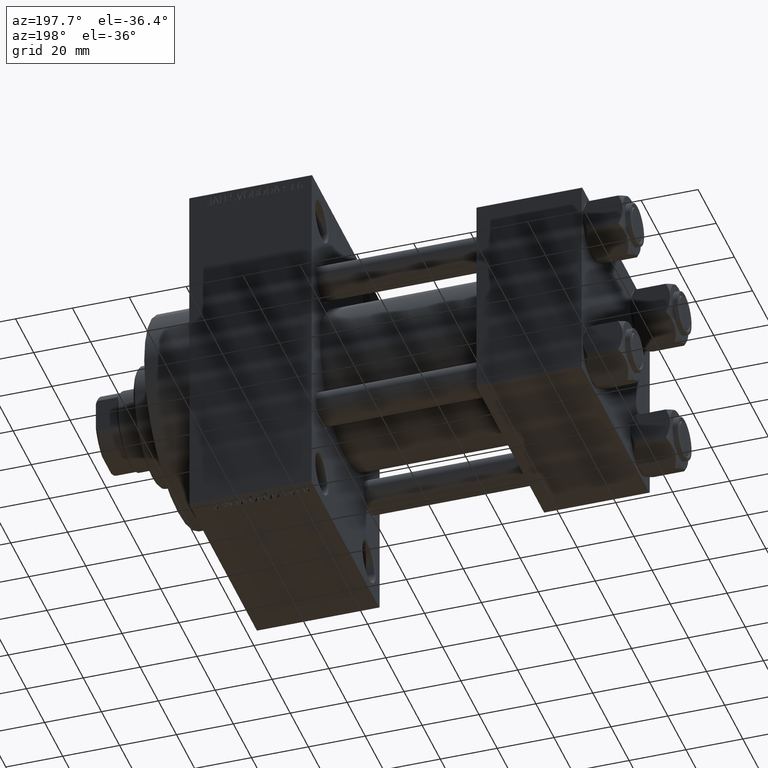
[diagram: clean part render]
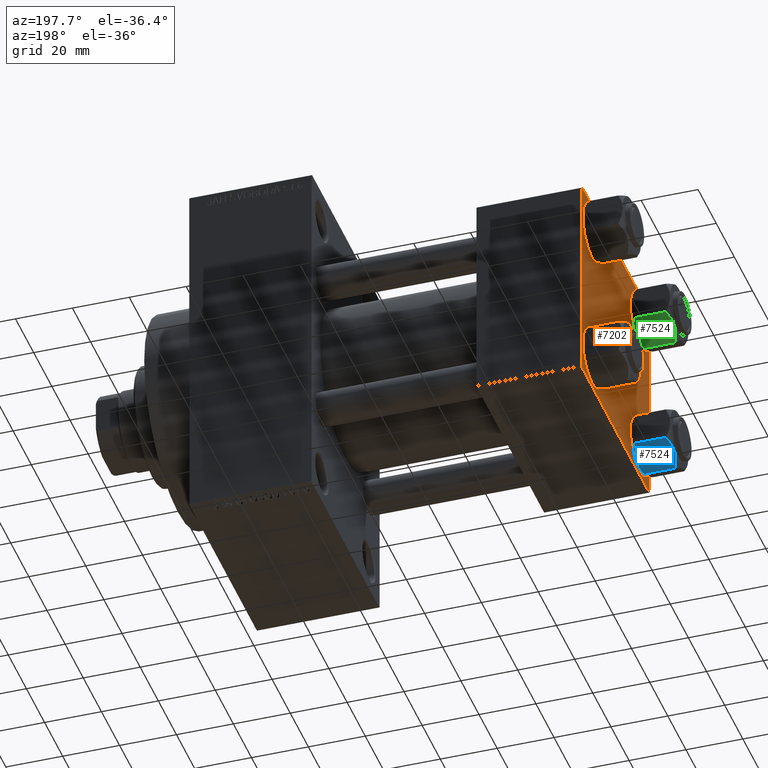
[diagram: same view with three faces highlighted in distinct colors, each labeled with its STEP entity id]
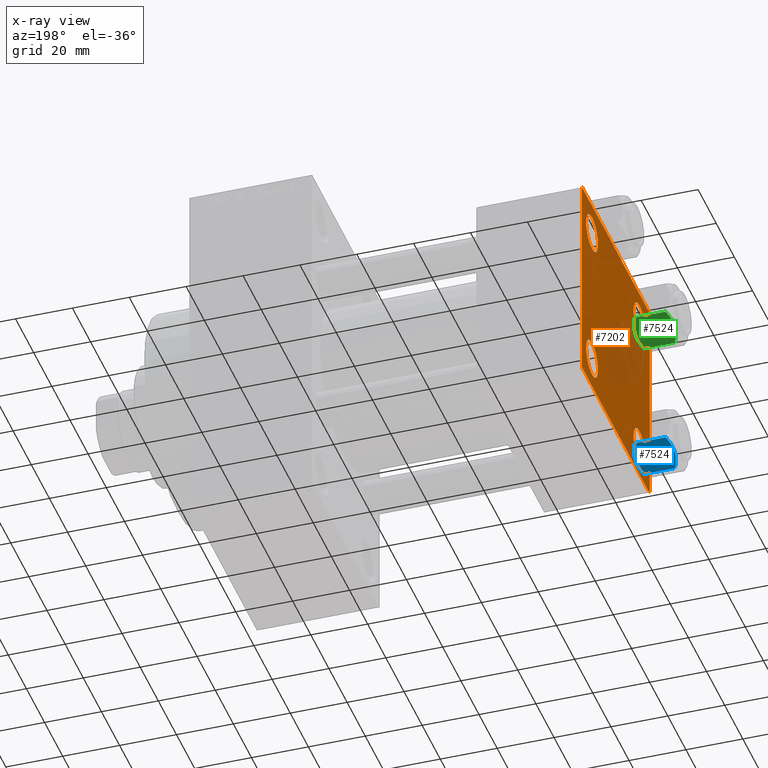
[diagram: x-ray of the same camera — body ghosted, the three highlighted faces saturated]
A machine part, auxiliary view with three faces highlighted in distinct colors.
The next image is the same camera in x-ray (body ghosted, the three faces saturated) — at least one of them is partly hidden behind the body in this view.
Their STEP definitions:

[orange] entity #7202 — the highlighted planar face has unit normal (-1, 0, 0).
#605 = CARTESIAN_POINT ( 'NONE',  ( 0.000000000000000000, 37.49999999999999289, 37.00000000000000000 ) ) ;
#720 = DIRECTION ( 'NONE',  ( 1.000000000000000000, -0.000000000000000000, 0.000000000000000000 ) ) ;
#965 = VECTOR ( 'NONE', #40925, 1000.000000000000000 ) ;
#1053 = DIRECTION ( 'NONE',  ( 1.000000000000000000, -0.000000000000000000, 0.000000000000000000 ) ) ;
#1736 = EDGE_LOOP ( 'NONE', ( #29066, #24371 ) ) ;
#2817 = EDGE_CURVE ( 'NONE', #22988, #34729, #35457, .T. ) ;
#2868 = VERTEX_POINT ( 'NONE', #29893 ) ;
#3080 = EDGE_CURVE ( 'NONE', #45948, #46241, #46792, .T. ) ;
#3264 = VERTEX_POINT ( 'NONE', #12159 ) ;
#3584 = DIRECTION ( 'NONE',  ( 0.000000000000000000, 0.000000000000000000, 1.000000000000000000 ) ) ;
#3593 = DIRECTION ( 'NONE',  ( -0.000000000000000000, 0.7071067811865474617, 0.7071067811865474617 ) ) ;
#3963 = EDGE_CURVE ( 'NONE', #18102, #21111, #7636, .T. ) ;
#5175 = VERTEX_POINT ( 'NONE', #29492 ) ;
#5700 = CIRCLE ( 'NONE', #33925, 6.500000000000015987 ) ;
#5885 = DIRECTION ( 'NONE',  ( -0.000000000000000000, 0.000000000000000000, 1.000000000000000000 ) ) ;
#5938 = DIRECTION ( 'NONE',  ( 0.000000000000000000, 0.000000000000000000, 1.000000000000000000 ) ) ;
#6451 = ORIENTED_EDGE ( 'NONE', *, *, #38595, .T. ) ;
#6553 = VERTEX_POINT ( 'NONE', #28011 ) ;
#6783 = VECTOR ( 'NONE', #11173, 1000.000000000000000 ) ;
#6935 = CARTESIAN_POINT ( 'NONE',  ( -0.000000000000000000, -37.25000000000000000, 37.25000000000000000 ) ) ;
#6989 = EDGE_CURVE ( 'NONE', #2868, #31759, #43570, .T. ) ;
#7202 = ADVANCED_FACE ( 'NONE', ( #31423, #38819, #46208, #24037, #21171 ), #16873, .T. ) ;
#7291 = EDGE_LOOP ( 'NONE', ( #22604, #31156, #36927, #37890, #29996, #34312, #44545, #31688 ) ) ;
#7636 = CIRCLE ( 'NONE', #22129, 6.500000000000023093 ) ;
#7920 = CARTESIAN_POINT ( 'NONE',  ( 0.000000000000000000, 36.99999999999997868, -37.50000000000000000 ) ) ;
#8272 = LINE ( 'NONE', #43852, #6783 ) ;
#8438 = DIRECTION ( 'NONE',  ( 0.000000000000000000, 0.7071067811865474617, -0.7071067811865474617 ) ) ;
#9202 = VERTEX_POINT ( 'NONE', #15402 ) ;
#9738 = EDGE_CURVE ( 'NONE', #21111, #18102, #24556, .T. ) ;
#10139 = VERTEX_POINT ( 'NONE', #605 ) ;
#10192 = EDGE_CURVE ( 'NONE', #10139, #33866, #34243, .T. ) ;
#10282 = DIRECTION ( 'NONE',  ( 1.000000000000000000, -0.000000000000000000, 0.000000000000000000 ) ) ;
#10821 = DIRECTION ( 'NONE',  ( 0.000000000000000000, 0.000000000000000000, 1.000000000000000000 ) ) ;
#10824 = DIRECTION ( 'NONE',  ( 1.000000000000000000, -0.000000000000000000, 0.000000000000000000 ) ) ;
#11173 = DIRECTION ( 'NONE',  ( 0.000000000000000000, -1.000000000000000000, -9.251858538542971581E-17 ) ) ;
#11236 = CARTESIAN_POINT ( 'NONE',  ( 0.000000000000000000, 26.14999999999999858, -26.15000000000000213 ) ) ;
#11302 = CIRCLE ( 'NONE', #44062, 6.500000000000023093 ) ;
#11780 = EDGE_LOOP ( 'NONE', ( #34070, #6451 ) ) ;
#11798 = LINE ( 'NONE', #15377, #35357 ) ;
#12159 = CARTESIAN_POINT ( 'NONE',  ( 0.000000000000000000, -26.14999999999999147, -32.65000000000002700 ) ) ;
#12754 = AXIS2_PLACEMENT_3D ( 'NONE', #11236, #10282, #43684 ) ;
#12897 = CARTESIAN_POINT ( 'NONE',  ( 0.000000000000000000, 26.14999999999999858, 32.65000000000002700 ) ) ;
#13289 = DIRECTION ( 'NONE',  ( -1.000000000000000000, 0.000000000000000000, -0.000000000000000000 ) ) ;
#14084 = EDGE_CURVE ( 'NONE', #46241, #34729, #34233, .T. ) ;
#14172 = DIRECTION ( 'NONE',  ( 0.000000000000000000, 0.000000000000000000, 1.000000000000000000 ) ) ;
#14394 = EDGE_CURVE ( 'NONE', #3264, #5175, #33022, .T. ) ;
#14688 = AXIS2_PLACEMENT_3D ( 'NONE', #33210, #720, #39652 ) ;
#15044 = DIRECTION ( 'NONE',  ( 0.000000000000000000, -1.000000000000000000, -9.251858538542972814E-17 ) ) ;
#15377 = CARTESIAN_POINT ( 'NONE',  ( 0.000000000000000000, 37.24999999999999289, 37.24999999999999289 ) ) ;
#15402 = CARTESIAN_POINT ( 'NONE',  ( 0.000000000000000000, -37.00000000000000711, 37.49999999999999289 ) ) ;
#16102 = VECTOR ( 'NONE', #45452, 1000.000000000000000 ) ;
#16873 = PLANE ( 'NONE',  #23743 ) ;
#17922 = CARTESIAN_POINT ( 'NONE',  ( 0.000000000000000000, -37.00000000000002132, -37.50000000000000711 ) ) ;
#18026 = CIRCLE ( 'NONE', #31730, 6.500000000000023093 ) ;
#18102 = VERTEX_POINT ( 'NONE', #19902 ) ;
#18162 = CARTESIAN_POINT ( 'NONE',  ( 0.000000000000000000, 36.99999999999999289, 37.50000000000000000 ) ) ;
#18370 = CARTESIAN_POINT ( 'NONE',  ( 0.000000000000000000, -37.50000000000000000, -37.00000000000003553 ) ) ;
#19800 = VECTOR ( 'NONE', #21380, 1000.000000000000000 ) ;
#19902 = CARTESIAN_POINT ( 'NONE',  ( 0.000000000000000000, -26.14999999999999147, 32.65000000000003411 ) ) ;
#19920 = CARTESIAN_POINT ( 'NONE',  ( 0.000000000000000000, -37.24999999999975842, -37.25000000000027001 ) ) ;
#19937 = EDGE_CURVE ( 'NONE', #38576, #10139, #11798, .T. ) ;
#20193 = EDGE_LOOP ( 'NONE', ( #24945, #44354 ) ) ;
#20338 = CARTESIAN_POINT ( 'NONE',  ( 0.000000000000000000, -26.14999999999999147, -26.15000000000000924 ) ) ;
#20744 = CARTESIAN_POINT ( 'NONE',  ( 0.000000000000000000, 26.14999999999999858, -26.15000000000000213 ) ) ;
#21111 = VERTEX_POINT ( 'NONE', #29487 ) ;
#21171 = FACE_OUTER_BOUND ( 'NONE', #7291, .T. ) ;
#21380 = DIRECTION ( 'NONE',  ( 0.000000000000000000, 9.251858538542971581E-17, -1.000000000000000000 ) ) ;
#22118 = VERTEX_POINT ( 'NONE', #12897 ) ;
#22129 = AXIS2_PLACEMENT_3D ( 'NONE', #35405, #24666, #10821 ) ;
#22604 = ORIENTED_EDGE ( 'NONE', *, *, #10192, .T. ) ;
#22988 = VERTEX_POINT ( 'NONE', #31991 ) ;
#23743 = AXIS2_PLACEMENT_3D ( 'NONE', #28576, #13289, #5885 ) ;
#24037 = FACE_BOUND ( 'NONE', #11780, .T. ) ;
#24371 = ORIENTED_EDGE ( 'NONE', *, *, #14394, .T. ) ;
#24556 = CIRCLE ( 'NONE', #14688, 6.500000000000023093 ) ;
#24666 = DIRECTION ( 'NONE',  ( 1.000000000000000000, -0.000000000000000000, 0.000000000000000000 ) ) ;
#24795 = CARTESIAN_POINT ( 'NONE',  ( 0.000000000000000000, 37.49999999999999289, -36.99999999999998579 ) ) ;
#24909 = EDGE_CURVE ( 'NONE', #33866, #45948, #33622, .T. ) ;
#24945 = ORIENTED_EDGE ( 'NONE', *, *, #32568, .T. ) ;
#25034 = VECTOR ( 'NONE', #3593, 1000.000000000000114 ) ;
#25568 = LINE ( 'NONE', #6935, #25034 ) ;
#25768 = CARTESIAN_POINT ( 'NONE',  ( 0.000000000000000000, 37.24999999999998579, -37.24999999999998579 ) ) ;
#26378 = CARTESIAN_POINT ( 'NONE',  ( 0.000000000000000000, 26.14999999999999858, 26.15000000000000213 ) ) ;
#26896 = EDGE_CURVE ( 'NONE', #5175, #3264, #5700, .T. ) ;
#27075 = DIRECTION ( 'NONE',  ( 0.000000000000000000, 0.000000000000000000, 1.000000000000000000 ) ) ;
#28011 = CARTESIAN_POINT ( 'NONE',  ( 0.000000000000000000, 26.14999999999999858, 19.64999999999998437 ) ) ;
#28576 = CARTESIAN_POINT ( 'NONE',  ( 0.000000000000000000, 0.000000000000000000, 0.000000000000000000 ) ) ;
#29066 = ORIENTED_EDGE ( 'NONE', *, *, #26896, .T. ) ;
#29115 = AXIS2_PLACEMENT_3D ( 'NONE', #20744, #38640, #5938 ) ;
#29222 = CARTESIAN_POINT ( 'NONE',  ( 0.000000000000000000, 26.14999999999999858, -19.64999999999998792 ) ) ;
#29487 = CARTESIAN_POINT ( 'NONE',  ( 0.000000000000000000, -26.14999999999999147, 19.64999999999999147 ) ) ;
#29492 = CARTESIAN_POINT ( 'NONE',  ( 0.000000000000000000, -26.14999999999999147, -19.64999999999999503 ) ) ;
#29893 = CARTESIAN_POINT ( 'NONE',  ( 0.000000000000000000, 26.14999999999999858, -32.65000000000001990 ) ) ;
#29996 = ORIENTED_EDGE ( 'NONE', *, *, #2817, .F. ) ;
#30501 = EDGE_CURVE ( 'NONE', #22118, #6553, #18026, .T. ) ;
#31126 = CARTESIAN_POINT ( 'NONE',  ( 0.000000000000000000, 37.49999999999999289, 37.50000000000000000 ) ) ;
#31156 = ORIENTED_EDGE ( 'NONE', *, *, #24909, .T. ) ;
#31229 = VECTOR ( 'NONE', #15044, 1000.000000000000000 ) ;
#31423 = FACE_BOUND ( 'NONE', #46415, .T. ) ;
#31688 = ORIENTED_EDGE ( 'NONE', *, *, #19937, .T. ) ;
#31730 = AXIS2_PLACEMENT_3D ( 'NONE', #26378, #1053, #27075 ) ;
#31759 = VERTEX_POINT ( 'NONE', #29222 ) ;
#31991 = CARTESIAN_POINT ( 'NONE',  ( 0.000000000000000000, -37.50000000000000711, 36.99999999999999289 ) ) ;
#32270 = AXIS2_PLACEMENT_3D ( 'NONE', #20338, #34886, #42975 ) ;
#32568 = EDGE_CURVE ( 'NONE', #31759, #2868, #40931, .T. ) ;
#33022 = CIRCLE ( 'NONE', #32270, 6.500000000000015987 ) ;
#33088 = VECTOR ( 'NONE', #33395, 1000.000000000000114 ) ;
#33210 = CARTESIAN_POINT ( 'NONE',  ( 0.000000000000000000, -26.14999999999999147, 26.15000000000000924 ) ) ;
#33395 = DIRECTION ( 'NONE',  ( -0.000000000000000000, -0.7071067811865474617, -0.7071067811865474617 ) ) ;
#33622 = LINE ( 'NONE', #25768, #33088 ) ;
#33866 = VERTEX_POINT ( 'NONE', #24795 ) ;
#33925 = AXIS2_PLACEMENT_3D ( 'NONE', #46859, #10824, #14172 ) ;
#34070 = ORIENTED_EDGE ( 'NONE', *, *, #30501, .T. ) ;
#34233 = LINE ( 'NONE', #19920, #965 ) ;
#34243 = LINE ( 'NONE', #31126, #16102 ) ;
#34312 = ORIENTED_EDGE ( 'NONE', *, *, #39492, .T. ) ;
#34729 = VERTEX_POINT ( 'NONE', #18370 ) ;
#34886 = DIRECTION ( 'NONE',  ( 1.000000000000000000, -0.000000000000000000, 0.000000000000000000 ) ) ;
#35357 = VECTOR ( 'NONE', #8438, 1000.000000000000114 ) ;
#35405 = CARTESIAN_POINT ( 'NONE',  ( 0.000000000000000000, -26.14999999999999147, 26.15000000000000924 ) ) ;
#35457 = LINE ( 'NONE', #35696, #19800 ) ;
#35696 = CARTESIAN_POINT ( 'NONE',  ( 0.000000000000000000, -37.50000000000000711, 37.49999999999999289 ) ) ;
#36297 = CARTESIAN_POINT ( 'NONE',  ( 0.000000000000000000, 26.14999999999999858, 26.15000000000000213 ) ) ;
#36927 = ORIENTED_EDGE ( 'NONE', *, *, #3080, .T. ) ;
#37594 = ORIENTED_EDGE ( 'NONE', *, *, #9738, .T. ) ;
#37890 = ORIENTED_EDGE ( 'NONE', *, *, #14084, .T. ) ;
#37910 = ORIENTED_EDGE ( 'NONE', *, *, #3963, .T. ) ;
#38576 = VERTEX_POINT ( 'NONE', #18162 ) ;
#38595 = EDGE_CURVE ( 'NONE', #6553, #22118, #11302, .T. ) ;
#38640 = DIRECTION ( 'NONE',  ( 1.000000000000000000, -0.000000000000000000, 0.000000000000000000 ) ) ;
#38819 = FACE_BOUND ( 'NONE', #1736, .T. ) ;
#39492 = EDGE_CURVE ( 'NONE', #22988, #9202, #25568, .T. ) ;
#39652 = DIRECTION ( 'NONE',  ( 0.000000000000000000, 0.000000000000000000, 1.000000000000000000 ) ) ;
#39837 = EDGE_CURVE ( 'NONE', #38576, #9202, #8272, .T. ) ;
#40120 = CARTESIAN_POINT ( 'NONE',  ( 0.000000000000000000, 37.49999999999999289, -37.50000000000000000 ) ) ;
#40925 = DIRECTION ( 'NONE',  ( 0.000000000000000000, -0.7071067811865524577, 0.7071067811865426878 ) ) ;
#40931 = CIRCLE ( 'NONE', #12754, 6.500000000000015987 ) ;
#42975 = DIRECTION ( 'NONE',  ( 0.000000000000000000, 0.000000000000000000, 1.000000000000000000 ) ) ;
#43189 = DIRECTION ( 'NONE',  ( 1.000000000000000000, -0.000000000000000000, 0.000000000000000000 ) ) ;
#43570 = CIRCLE ( 'NONE', #29115, 6.500000000000015987 ) ;
#43684 = DIRECTION ( 'NONE',  ( 0.000000000000000000, 0.000000000000000000, 1.000000000000000000 ) ) ;
#43852 = CARTESIAN_POINT ( 'NONE',  ( 0.000000000000000000, 37.49999999999999289, 37.50000000000000000 ) ) ;
#44062 = AXIS2_PLACEMENT_3D ( 'NONE', #36297, #43189, #3584 ) ;
#44354 = ORIENTED_EDGE ( 'NONE', *, *, #6989, .T. ) ;
#44545 = ORIENTED_EDGE ( 'NONE', *, *, #39837, .F. ) ;
#45452 = DIRECTION ( 'NONE',  ( 0.000000000000000000, 0.000000000000000000, -1.000000000000000000 ) ) ;
#45948 = VERTEX_POINT ( 'NONE', #7920 ) ;
#46208 = FACE_BOUND ( 'NONE', #20193, .T. ) ;
#46241 = VERTEX_POINT ( 'NONE', #17922 ) ;
#46415 = EDGE_LOOP ( 'NONE', ( #37910, #37594 ) ) ;
#46792 = LINE ( 'NONE', #40120, #31229 ) ;
#46859 = CARTESIAN_POINT ( 'NONE',  ( 0.000000000000000000, -26.14999999999999147, -26.15000000000000924 ) ) ;

[blue] entity #7524 — the highlighted planar face has unit normal (0, -0.5, 0.866).
#97 = AXIS2_PLACEMENT_3D ( 'NONE', #46069, #20553, #34871 ) ;
#2438 = CARTESIAN_POINT ( 'NONE',  ( 8.209704053696569304, -5.906805847843727086, -14.00000000000000178 ) ) ;
#2768 = CARTESIAN_POINT ( 'NONE',  ( 5.810000000000000497, -10.06321519197517667, -1.556784808024811895 ) ) ;
#3490 = CARTESIAN_POINT ( 'NONE',  ( 8.715000000000003411, -5.031607595987592774, 0.000000000000000000 ) ) ;
#4543 = CARTESIAN_POINT ( 'NONE',  ( 8.715000000000003411, -5.031607595987592774, -14.00000000000000000 ) ) ;
#4630 = EDGE_CURVE ( 'NONE', #16081, #36760, #28014, .T. ) ;
#4943 = EDGE_LOOP ( 'NONE', ( #32400, #23801, #25088, #14974, #10931, #25487 ) ) ;
#5148 = CARTESIAN_POINT ( 'NONE',  ( 11.62000000000000099, -1.813166800014576593E-15, -14.00000000000000000 ) ) ;
#5255 = B_SPLINE_CURVE_WITH_KNOTS ( 'NONE', 3,
 ( #2768, #24736, #21163, #10410, #35233, #31888, #43091, #3490 ),
 .UNSPECIFIED., .F., .F.,
 ( 4, 2, 2, 4 ),
 ( 2.544312114902182352E-07, 0.003011550106433539056, 0.004517197944044561847, 0.006022845781655586372 ),
 .UNSPECIFIED. ) ;
#5385 = DIRECTION ( 'NONE',  ( -0.000000000000000000, -0.000000000000000000, 1.000000000000000000 ) ) ;
#5746 = FACE_OUTER_BOUND ( 'NONE', #4943, .T. ) ;
#7524 = ADVANCED_FACE ( 'NONE', ( #5746 ), #31052, .F. ) ;
#7621 = CARTESIAN_POINT ( 'NONE',  ( 11.16498164529022574, -0.7881149087337312453, -1.101766453314952487 ) ) ;
#7671 = VECTOR ( 'NONE', #41853, 1000.000000000000000 ) ;
#8592 = CARTESIAN_POINT ( 'NONE',  ( 8.969430103550381617, -4.590921729663316242, -14.00000000000000178 ) ) ;
#9120 = EDGE_CURVE ( 'NONE', #36760, #12416, #5255, .T. ) ;
#9843 = CARTESIAN_POINT ( 'NONE',  ( 6.265018354709780191, -9.275100283241448196, -12.89823354668505395 ) ) ;
#9868 = CARTESIAN_POINT ( 'NONE',  ( 5.810000000000000497, -10.06321519197517667, -14.00000000000000000 ) ) ;
#10410 = CARTESIAN_POINT ( 'NONE',  ( 7.455303369716807182, -7.213466161761383333, -0.3002673809867365540 ) ) ;
#10931 = ORIENTED_EDGE ( 'NONE', *, *, #4630, .F. ) ;
#12131 = CARTESIAN_POINT ( 'NONE',  ( 9.220295946303432189, -4.156409344131454020, 3.521962994683380021E-15 ) ) ;
#12416 = VERTEX_POINT ( 'NONE', #33320 ) ;
#14974 = ORIENTED_EDGE ( 'NONE', *, *, #9120, .F. ) ;
#15535 = CARTESIAN_POINT ( 'NONE',  ( 10.69859855102500923, -1.595914123792265160, -13.28585617404753627 ) ) ;
#16081 = VERTEX_POINT ( 'NONE', #33684 ) ;
#16341 = EDGE_CURVE ( 'NONE', #12416, #31127, #22327, .T. ) ;
#16781 = CARTESIAN_POINT ( 'NONE',  ( 8.715000000000003411, -5.031607595987592774, -14.00000000000000000 ) ) ;
#17012 = CARTESIAN_POINT ( 'NONE',  ( 7.713000053756305263, -6.767122412062954062, -13.84547602999601956 ) ) ;
#18611 = VECTOR ( 'NONE', #5385, 1000.000000000000000 ) ;
#20553 = DIRECTION ( 'NONE',  ( -0.8660254037844385966, 0.5000000000000002220, 0.000000000000000000 ) ) ;
#20833 = CARTESIAN_POINT ( 'NONE',  ( 5.810000000000000497, -10.06321519197517667, -12.44321519197518811 ) ) ;
#20876 = EDGE_CURVE ( 'NONE', #44746, #31127, #45482, .T. ) ;
#21163 = CARTESIAN_POINT ( 'NONE',  ( 6.731401448974991375, -8.467301068182914392, -0.7141438259524641730 ) ) ;
#22188 = CARTESIAN_POINT ( 'NONE',  ( 8.715000000000003411, -5.031607595987592774, 0.000000000000000000 ) ) ;
#22327 = B_SPLINE_CURVE_WITH_KNOTS ( 'NONE', 3,
 ( #22188, #12131, #26462, #26005, #7621, #41009 ),
 .UNSPECIFIED., .F., .F.,
 ( 4, 2, 4 ),
 ( 0.006022845781655586372, 0.009013049135303633289, 0.01200325248895168020 ),
 .UNSPECIFIED. ) ;
#23801 = ORIENTED_EDGE ( 'NONE', *, *, #20876, .T. ) ;
#24455 = CARTESIAN_POINT ( 'NONE',  ( 5.810000000000000497, -10.06321519197517667, -1.556784808024811895 ) ) ;
#24736 = CARTESIAN_POINT ( 'NONE',  ( 6.265545725125285514, -9.274186850887382150, -1.101239082899530430 ) ) ;
#25088 = ORIENTED_EDGE ( 'NONE', *, *, #16341, .F. ) ;
#25487 = ORIENTED_EDGE ( 'NONE', *, *, #45857, .F. ) ;
#26005 = CARTESIAN_POINT ( 'NONE',  ( 10.69662495661650503, -1.599332489581334560, -0.7114554706434483844 ) ) ;
#26302 = CARTESIAN_POINT ( 'NONE',  ( 8.715000000000003411, -5.031607595987592774, -14.00000000000000000 ) ) ;
#26462 = CARTESIAN_POINT ( 'NONE',  ( 9.716999946243698005, -3.296092779912227932, -0.1545239700039822972 ) ) ;
#26745 = CARTESIAN_POINT ( 'NONE',  ( 9.974696630283190757, -2.849749030213793777, -13.69973261901325934 ) ) ;
#26773 = VERTEX_POINT ( 'NONE', #26302 ) ;
#28014 = LINE ( 'NONE', #9868, #7671 ) ;
#28030 = B_SPLINE_CURVE_WITH_KNOTS ( 'NONE', 3,
 ( #16781, #2438, #17012, #42526, #9843, #20833 ),
 .UNSPECIFIED., .F., .F.,
 ( 4, 2, 4 ),
 ( 0.006022845781655588975, 0.009013049135303631554, 0.01200325248895167674 ),
 .UNSPECIFIED. ) ;
#30094 = CARTESIAN_POINT ( 'NONE',  ( 9.227666995912100489, -4.143642311704125447, -13.96005881939309212 ) ) ;
#31052 = PLANE ( 'NONE',  #97 ) ;
#31127 = VERTEX_POINT ( 'NONE', #43692 ) ;
#31888 = CARTESIAN_POINT ( 'NONE',  ( 8.202333004087897450, -5.919572880271052995, -0.03994118060690592109 ) ) ;
#32400 = ORIENTED_EDGE ( 'NONE', *, *, #46826, .F. ) ;
#33120 = B_SPLINE_CURVE_WITH_KNOTS ( 'NONE', 3,
 ( #37261, #37949, #15535, #26745, #41748, #30094, #8592, #4543 ),
 .UNSPECIFIED., .F., .F.,
 ( 4, 2, 2, 4 ),
 ( 2.544312114904007178E-07, 0.003011550106433541225, 0.004517197944044565316, 0.006022845781655588975 ),
 .UNSPECIFIED. ) ;
#33320 = CARTESIAN_POINT ( 'NONE',  ( 8.715000000000003411, -5.031607595987592774, 0.000000000000000000 ) ) ;
#33684 = CARTESIAN_POINT ( 'NONE',  ( 5.810000000000000497, -10.06321519197517667, -12.44321519197518811 ) ) ;
#34871 = DIRECTION ( 'NONE',  ( -0.5000000000000001110, -0.8660254037844384856, 0.000000000000000000 ) ) ;
#35233 = CARTESIAN_POINT ( 'NONE',  ( 7.700834831386344170, -6.788193195293096061, -0.1903979688073396681 ) ) ;
#36760 = VERTEX_POINT ( 'NONE', #24455 ) ;
#37261 = CARTESIAN_POINT ( 'NONE',  ( 11.62000000000000099, -1.689012838886770227E-15, -12.44321519197518633 ) ) ;
#37949 = CARTESIAN_POINT ( 'NONE',  ( 11.16445427487472131, -0.7890283410877986237, -12.89876091710047135 ) ) ;
#38768 = CARTESIAN_POINT ( 'NONE',  ( 11.62000000000000099, -1.689012838886770227E-15, -12.44321519197518633 ) ) ;
#41009 = CARTESIAN_POINT ( 'NONE',  ( 11.62000000000000099, -1.924525737834042474E-15, -1.556784808024813893 ) ) ;
#41748 = CARTESIAN_POINT ( 'NONE',  ( 9.729165168613651105, -3.275021996682085046, -13.80960203119265906 ) ) ;
#41853 = DIRECTION ( 'NONE',  ( -0.000000000000000000, -0.000000000000000000, 1.000000000000000000 ) ) ;
#42526 = CARTESIAN_POINT ( 'NONE',  ( 6.733375043383495573, -8.463882702393842550, -13.28854452935654962 ) ) ;
#43091 = CARTESIAN_POINT ( 'NONE',  ( 8.460569896449618099, -5.472293462311865753, 3.427848222766236415E-15 ) ) ;
#43692 = CARTESIAN_POINT ( 'NONE',  ( 11.62000000000000099, -1.924525737834042474E-15, -1.556784808024813893 ) ) ;
#44746 = VERTEX_POINT ( 'NONE', #38768 ) ;
#45482 = LINE ( 'NONE', #5148, #18611 ) ;
#45857 = EDGE_CURVE ( 'NONE', #26773, #16081, #28030, .T. ) ;
#46069 = CARTESIAN_POINT ( 'NONE',  ( 11.62000000000000099, -1.813166800014576593E-15, -14.00000000000000000 ) ) ;
#46826 = EDGE_CURVE ( 'NONE', #44746, #26773, #33120, .T. ) ;

[green] entity #7524 — the highlighted planar face has unit normal (0, -0.5, 0.866).
#97 = AXIS2_PLACEMENT_3D ( 'NONE', #46069, #20553, #34871 ) ;
#2438 = CARTESIAN_POINT ( 'NONE',  ( 8.209704053696569304, -5.906805847843727086, -14.00000000000000178 ) ) ;
#2768 = CARTESIAN_POINT ( 'NONE',  ( 5.810000000000000497, -10.06321519197517667, -1.556784808024811895 ) ) ;
#3490 = CARTESIAN_POINT ( 'NONE',  ( 8.715000000000003411, -5.031607595987592774, 0.000000000000000000 ) ) ;
#4543 = CARTESIAN_POINT ( 'NONE',  ( 8.715000000000003411, -5.031607595987592774, -14.00000000000000000 ) ) ;
#4630 = EDGE_CURVE ( 'NONE', #16081, #36760, #28014, .T. ) ;
#4943 = EDGE_LOOP ( 'NONE', ( #32400, #23801, #25088, #14974, #10931, #25487 ) ) ;
#5148 = CARTESIAN_POINT ( 'NONE',  ( 11.62000000000000099, -1.813166800014576593E-15, -14.00000000000000000 ) ) ;
#5255 = B_SPLINE_CURVE_WITH_KNOTS ( 'NONE', 3,
 ( #2768, #24736, #21163, #10410, #35233, #31888, #43091, #3490 ),
 .UNSPECIFIED., .F., .F.,
 ( 4, 2, 2, 4 ),
 ( 2.544312114902182352E-07, 0.003011550106433539056, 0.004517197944044561847, 0.006022845781655586372 ),
 .UNSPECIFIED. ) ;
#5385 = DIRECTION ( 'NONE',  ( -0.000000000000000000, -0.000000000000000000, 1.000000000000000000 ) ) ;
#5746 = FACE_OUTER_BOUND ( 'NONE', #4943, .T. ) ;
#7524 = ADVANCED_FACE ( 'NONE', ( #5746 ), #31052, .F. ) ;
#7621 = CARTESIAN_POINT ( 'NONE',  ( 11.16498164529022574, -0.7881149087337312453, -1.101766453314952487 ) ) ;
#7671 = VECTOR ( 'NONE', #41853, 1000.000000000000000 ) ;
#8592 = CARTESIAN_POINT ( 'NONE',  ( 8.969430103550381617, -4.590921729663316242, -14.00000000000000178 ) ) ;
#9120 = EDGE_CURVE ( 'NONE', #36760, #12416, #5255, .T. ) ;
#9843 = CARTESIAN_POINT ( 'NONE',  ( 6.265018354709780191, -9.275100283241448196, -12.89823354668505395 ) ) ;
#9868 = CARTESIAN_POINT ( 'NONE',  ( 5.810000000000000497, -10.06321519197517667, -14.00000000000000000 ) ) ;
#10410 = CARTESIAN_POINT ( 'NONE',  ( 7.455303369716807182, -7.213466161761383333, -0.3002673809867365540 ) ) ;
#10931 = ORIENTED_EDGE ( 'NONE', *, *, #4630, .F. ) ;
#12131 = CARTESIAN_POINT ( 'NONE',  ( 9.220295946303432189, -4.156409344131454020, 3.521962994683380021E-15 ) ) ;
#12416 = VERTEX_POINT ( 'NONE', #33320 ) ;
#14974 = ORIENTED_EDGE ( 'NONE', *, *, #9120, .F. ) ;
#15535 = CARTESIAN_POINT ( 'NONE',  ( 10.69859855102500923, -1.595914123792265160, -13.28585617404753627 ) ) ;
#16081 = VERTEX_POINT ( 'NONE', #33684 ) ;
#16341 = EDGE_CURVE ( 'NONE', #12416, #31127, #22327, .T. ) ;
#16781 = CARTESIAN_POINT ( 'NONE',  ( 8.715000000000003411, -5.031607595987592774, -14.00000000000000000 ) ) ;
#17012 = CARTESIAN_POINT ( 'NONE',  ( 7.713000053756305263, -6.767122412062954062, -13.84547602999601956 ) ) ;
#18611 = VECTOR ( 'NONE', #5385, 1000.000000000000000 ) ;
#20553 = DIRECTION ( 'NONE',  ( -0.8660254037844385966, 0.5000000000000002220, 0.000000000000000000 ) ) ;
#20833 = CARTESIAN_POINT ( 'NONE',  ( 5.810000000000000497, -10.06321519197517667, -12.44321519197518811 ) ) ;
#20876 = EDGE_CURVE ( 'NONE', #44746, #31127, #45482, .T. ) ;
#21163 = CARTESIAN_POINT ( 'NONE',  ( 6.731401448974991375, -8.467301068182914392, -0.7141438259524641730 ) ) ;
#22188 = CARTESIAN_POINT ( 'NONE',  ( 8.715000000000003411, -5.031607595987592774, 0.000000000000000000 ) ) ;
#22327 = B_SPLINE_CURVE_WITH_KNOTS ( 'NONE', 3,
 ( #22188, #12131, #26462, #26005, #7621, #41009 ),
 .UNSPECIFIED., .F., .F.,
 ( 4, 2, 4 ),
 ( 0.006022845781655586372, 0.009013049135303633289, 0.01200325248895168020 ),
 .UNSPECIFIED. ) ;
#23801 = ORIENTED_EDGE ( 'NONE', *, *, #20876, .T. ) ;
#24455 = CARTESIAN_POINT ( 'NONE',  ( 5.810000000000000497, -10.06321519197517667, -1.556784808024811895 ) ) ;
#24736 = CARTESIAN_POINT ( 'NONE',  ( 6.265545725125285514, -9.274186850887382150, -1.101239082899530430 ) ) ;
#25088 = ORIENTED_EDGE ( 'NONE', *, *, #16341, .F. ) ;
#25487 = ORIENTED_EDGE ( 'NONE', *, *, #45857, .F. ) ;
#26005 = CARTESIAN_POINT ( 'NONE',  ( 10.69662495661650503, -1.599332489581334560, -0.7114554706434483844 ) ) ;
#26302 = CARTESIAN_POINT ( 'NONE',  ( 8.715000000000003411, -5.031607595987592774, -14.00000000000000000 ) ) ;
#26462 = CARTESIAN_POINT ( 'NONE',  ( 9.716999946243698005, -3.296092779912227932, -0.1545239700039822972 ) ) ;
#26745 = CARTESIAN_POINT ( 'NONE',  ( 9.974696630283190757, -2.849749030213793777, -13.69973261901325934 ) ) ;
#26773 = VERTEX_POINT ( 'NONE', #26302 ) ;
#28014 = LINE ( 'NONE', #9868, #7671 ) ;
#28030 = B_SPLINE_CURVE_WITH_KNOTS ( 'NONE', 3,
 ( #16781, #2438, #17012, #42526, #9843, #20833 ),
 .UNSPECIFIED., .F., .F.,
 ( 4, 2, 4 ),
 ( 0.006022845781655588975, 0.009013049135303631554, 0.01200325248895167674 ),
 .UNSPECIFIED. ) ;
#30094 = CARTESIAN_POINT ( 'NONE',  ( 9.227666995912100489, -4.143642311704125447, -13.96005881939309212 ) ) ;
#31052 = PLANE ( 'NONE',  #97 ) ;
#31127 = VERTEX_POINT ( 'NONE', #43692 ) ;
#31888 = CARTESIAN_POINT ( 'NONE',  ( 8.202333004087897450, -5.919572880271052995, -0.03994118060690592109 ) ) ;
#32400 = ORIENTED_EDGE ( 'NONE', *, *, #46826, .F. ) ;
#33120 = B_SPLINE_CURVE_WITH_KNOTS ( 'NONE', 3,
 ( #37261, #37949, #15535, #26745, #41748, #30094, #8592, #4543 ),
 .UNSPECIFIED., .F., .F.,
 ( 4, 2, 2, 4 ),
 ( 2.544312114904007178E-07, 0.003011550106433541225, 0.004517197944044565316, 0.006022845781655588975 ),
 .UNSPECIFIED. ) ;
#33320 = CARTESIAN_POINT ( 'NONE',  ( 8.715000000000003411, -5.031607595987592774, 0.000000000000000000 ) ) ;
#33684 = CARTESIAN_POINT ( 'NONE',  ( 5.810000000000000497, -10.06321519197517667, -12.44321519197518811 ) ) ;
#34871 = DIRECTION ( 'NONE',  ( -0.5000000000000001110, -0.8660254037844384856, 0.000000000000000000 ) ) ;
#35233 = CARTESIAN_POINT ( 'NONE',  ( 7.700834831386344170, -6.788193195293096061, -0.1903979688073396681 ) ) ;
#36760 = VERTEX_POINT ( 'NONE', #24455 ) ;
#37261 = CARTESIAN_POINT ( 'NONE',  ( 11.62000000000000099, -1.689012838886770227E-15, -12.44321519197518633 ) ) ;
#37949 = CARTESIAN_POINT ( 'NONE',  ( 11.16445427487472131, -0.7890283410877986237, -12.89876091710047135 ) ) ;
#38768 = CARTESIAN_POINT ( 'NONE',  ( 11.62000000000000099, -1.689012838886770227E-15, -12.44321519197518633 ) ) ;
#41009 = CARTESIAN_POINT ( 'NONE',  ( 11.62000000000000099, -1.924525737834042474E-15, -1.556784808024813893 ) ) ;
#41748 = CARTESIAN_POINT ( 'NONE',  ( 9.729165168613651105, -3.275021996682085046, -13.80960203119265906 ) ) ;
#41853 = DIRECTION ( 'NONE',  ( -0.000000000000000000, -0.000000000000000000, 1.000000000000000000 ) ) ;
#42526 = CARTESIAN_POINT ( 'NONE',  ( 6.733375043383495573, -8.463882702393842550, -13.28854452935654962 ) ) ;
#43091 = CARTESIAN_POINT ( 'NONE',  ( 8.460569896449618099, -5.472293462311865753, 3.427848222766236415E-15 ) ) ;
#43692 = CARTESIAN_POINT ( 'NONE',  ( 11.62000000000000099, -1.924525737834042474E-15, -1.556784808024813893 ) ) ;
#44746 = VERTEX_POINT ( 'NONE', #38768 ) ;
#45482 = LINE ( 'NONE', #5148, #18611 ) ;
#45857 = EDGE_CURVE ( 'NONE', #26773, #16081, #28030, .T. ) ;
#46069 = CARTESIAN_POINT ( 'NONE',  ( 11.62000000000000099, -1.813166800014576593E-15, -14.00000000000000000 ) ) ;
#46826 = EDGE_CURVE ( 'NONE', #44746, #26773, #33120, .T. ) ;